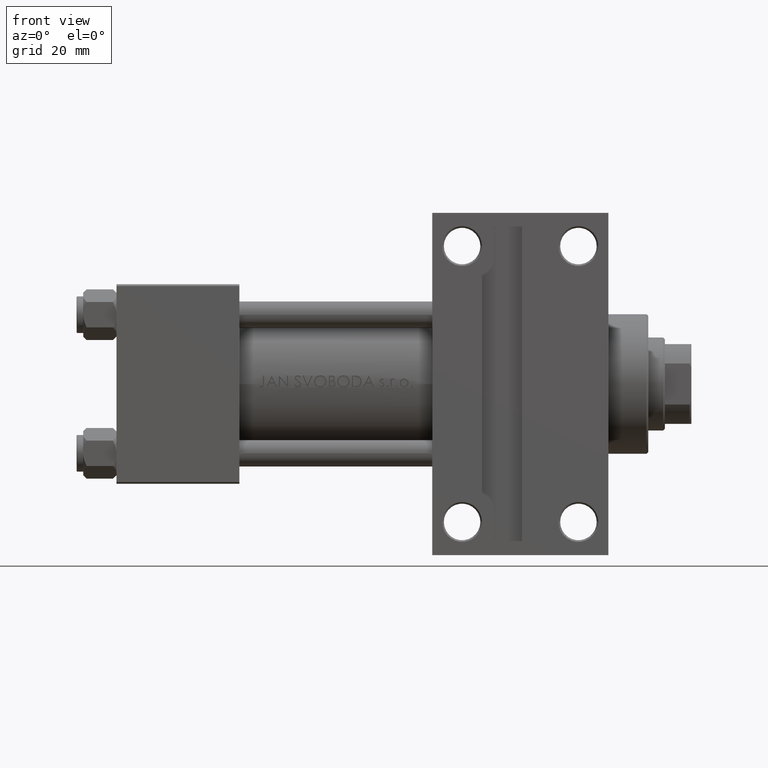
[diagram: clean part render]
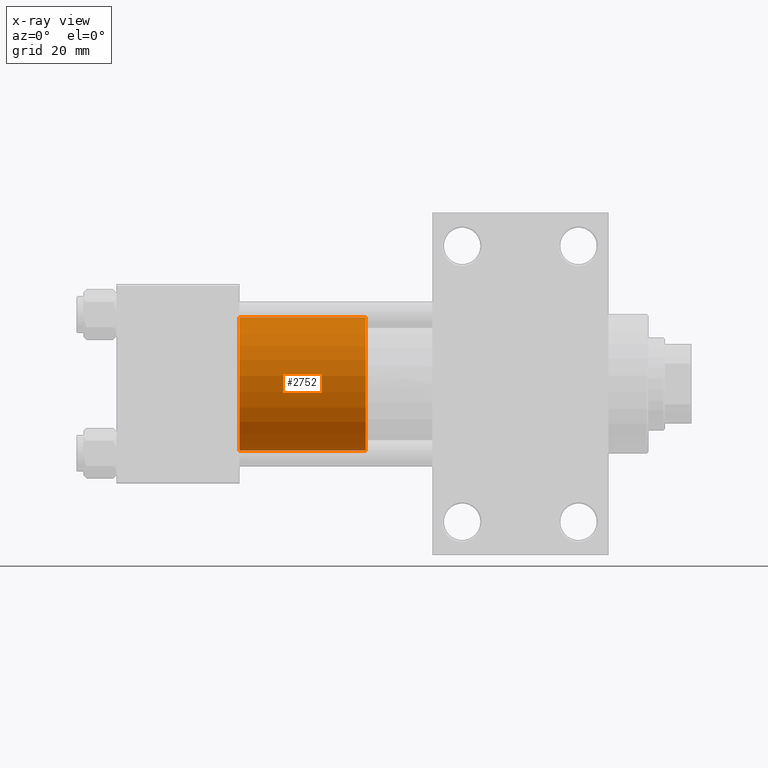
[diagram: x-ray — body ghosted, one internal face saturated and labeled with its STEP entity id]
A machine part, front view, then the same camera in x-ray: the body is ghosted and one INTERNAL B-rep face — a face not visible from any outside direction — is saturated and labeled: STEP entity #2752.
In plain terms, the highlighted cylindrical surface (partial cylindrical patch) has radius 20 mm, axis along (-1, 0, 0).
Its self-contained STEP definition (entity closure, byte-faithful):
#20 = ORIENTED_EDGE ( 'NONE', *, *, #37995, .F. ) ;
#975 = CARTESIAN_POINT ( 'NONE',  ( 20.00000000000000000, 2.449293598294706513E-15, 0.000000000000000000 ) ) ;
#2752 = ADVANCED_FACE ( 'NONE', ( #22006 ), #6219, .T. ) ;
#3136 = DIRECTION ( 'NONE',  ( 1.000000000000000000, 0.000000000000000000, 0.000000000000000000 ) ) ;
#4568 = CARTESIAN_POINT ( 'NONE',  ( 20.00000000000000000, 2.449293598294706513E-15, 38.00000000000000000 ) ) ;
#5030 = CIRCLE ( 'NONE', #12909, 20.00000000000000000 ) ;
#5251 = CARTESIAN_POINT ( 'NONE',  ( 20.00000000000000000, 2.449293598294706513E-15, 38.00000000000000000 ) ) ;
#6219 = CYLINDRICAL_SURFACE ( 'NONE', #41790, 20.00000000000000000 ) ;
#6344 = CARTESIAN_POINT ( 'NONE',  ( -20.00000000000000000, 0.000000000000000000, 0.000000000000000000 ) ) ;
#6695 = EDGE_CURVE ( 'NONE', #36309, #25124, #27936, .T. ) ;
#8701 = DIRECTION ( 'NONE',  ( -0.000000000000000000, -0.000000000000000000, -1.000000000000000000 ) ) ;
#9852 = EDGE_CURVE ( 'NONE', #36309, #48077, #28616, .T. ) ;
#10295 = CARTESIAN_POINT ( 'NONE',  ( 0.000000000000000000, 0.000000000000000000, 38.00000000000000000 ) ) ;
#10907 = EDGE_CURVE ( 'NONE', #25124, #18877, #5030, .T. ) ;
#11224 = VECTOR ( 'NONE', #8701, 1000.000000000000000 ) ;
#11292 = AXIS2_PLACEMENT_3D ( 'NONE', #10295, #29533, #3136 ) ;
#11683 = CARTESIAN_POINT ( 'NONE',  ( 0.000000000000000000, 0.000000000000000000, 0.000000000000000000 ) ) ;
#12088 = ORIENTED_EDGE ( 'NONE', *, *, #9852, .F. ) ;
#12909 = AXIS2_PLACEMENT_3D ( 'NONE', #11683, #30683, #34395 ) ;
#15066 = LINE ( 'NONE', #38255, #45279 ) ;
#18877 = VERTEX_POINT ( 'NONE', #6344 ) ;
#22006 = FACE_OUTER_BOUND ( 'NONE', #35260, .T. ) ;
#24165 = ORIENTED_EDGE ( 'NONE', *, *, #10907, .T. ) ;
#25124 = VERTEX_POINT ( 'NONE', #975 ) ;
#25455 = DIRECTION ( 'NONE',  ( -1.000000000000000000, 0.000000000000000000, 0.000000000000000000 ) ) ;
#27936 = LINE ( 'NONE', #5251, #11224 ) ;
#28616 = CIRCLE ( 'NONE', #11292, 20.00000000000000000 ) ;
#29170 = CARTESIAN_POINT ( 'NONE',  ( 0.000000000000000000, 0.000000000000000000, 38.00000000000000000 ) ) ;
#29533 = DIRECTION ( 'NONE',  ( 0.000000000000000000, 0.000000000000000000, 1.000000000000000000 ) ) ;
#30115 = DIRECTION ( 'NONE',  ( -0.000000000000000000, -0.000000000000000000, -1.000000000000000000 ) ) ;
#30683 = DIRECTION ( 'NONE',  ( 0.000000000000000000, 0.000000000000000000, 1.000000000000000000 ) ) ;
#33199 = ORIENTED_EDGE ( 'NONE', *, *, #6695, .T. ) ;
#34395 = DIRECTION ( 'NONE',  ( 1.000000000000000000, 0.000000000000000000, 0.000000000000000000 ) ) ;
#35260 = EDGE_LOOP ( 'NONE', ( #12088, #33199, #24165, #20 ) ) ;
#36309 = VERTEX_POINT ( 'NONE', #4568 ) ;
#37995 = EDGE_CURVE ( 'NONE', #48077, #18877, #15066, .T. ) ;
#38255 = CARTESIAN_POINT ( 'NONE',  ( -20.00000000000000000, 0.000000000000000000, 38.00000000000000000 ) ) ;
#41790 = AXIS2_PLACEMENT_3D ( 'NONE', #29170, #44451, #25455 ) ;
#41807 = CARTESIAN_POINT ( 'NONE',  ( -20.00000000000000000, 0.000000000000000000, 38.00000000000000000 ) ) ;
#44451 = DIRECTION ( 'NONE',  ( -0.000000000000000000, -0.000000000000000000, -1.000000000000000000 ) ) ;
#45279 = VECTOR ( 'NONE', #30115, 1000.000000000000000 ) ;
#48077 = VERTEX_POINT ( 'NONE', #41807 ) ;